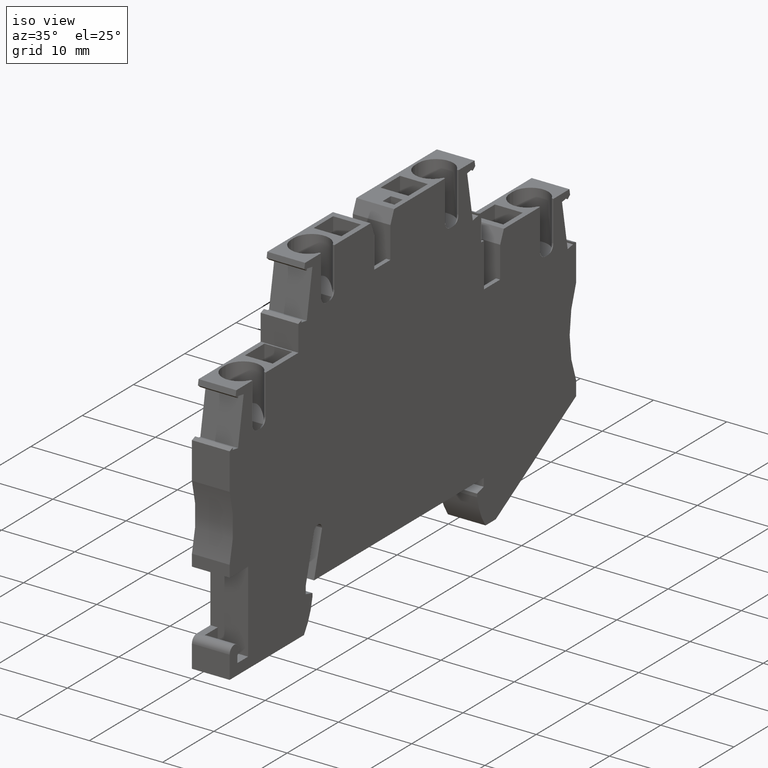
[diagram: clean part render]
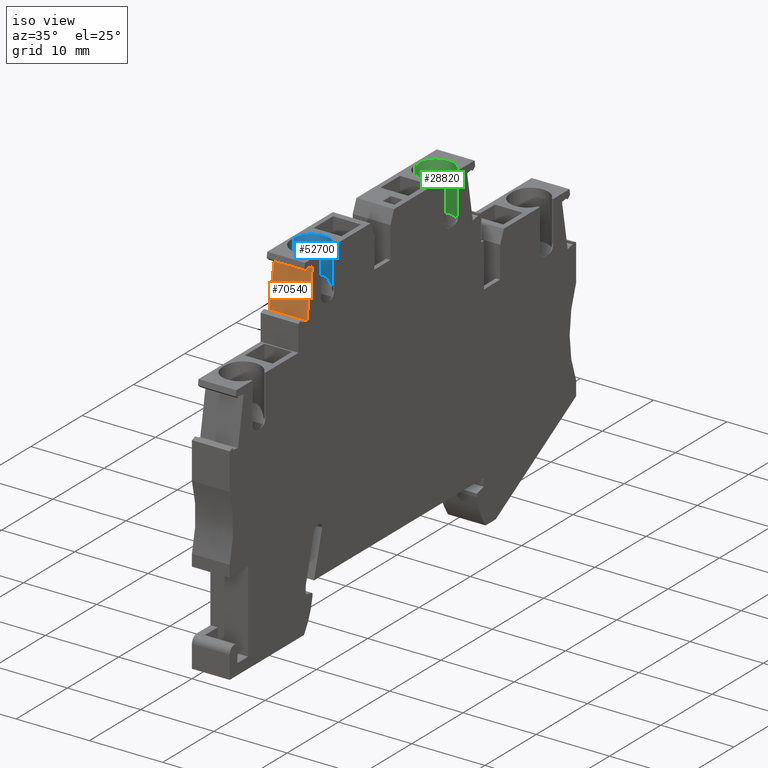
[diagram: same view with three faces highlighted in distinct colors, each labeled with its STEP entity id]
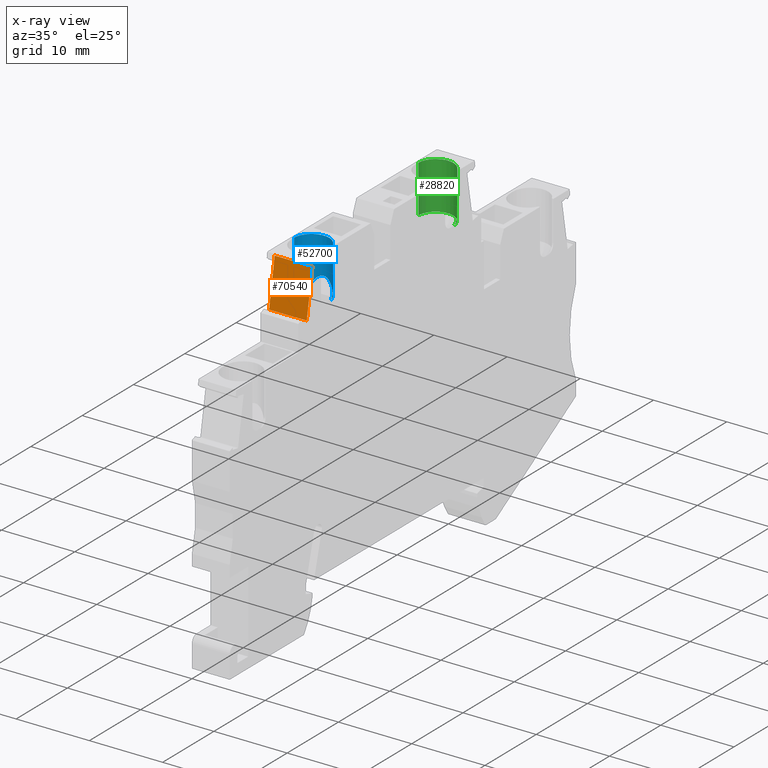
[diagram: x-ray of the same camera — body ghosted, the three highlighted faces saturated]
A machine part, iso view with three faces highlighted in distinct colors.
The next image is the same camera in x-ray (body ghosted, the three faces saturated) — at least one of them is partly hidden behind the body in this view.
Their STEP definitions:

[orange] entity #70540 — the highlighted planar face has unit normal (-0, 0.9848, -0.1736).
#3660=CARTESIAN_POINT('',(151.465628024636,41.3083312568005,48.52));
#3670=VERTEX_POINT('',#3660);
#3700=CARTESIAN_POINT('',(141.505837265967,-15.176449,48.52));
#3710=DIRECTION('',(0.173648177667041,0.984807753012189,0.));
#3720=VECTOR('',#3710,1.);
#3730=LINE('',#3700,#3720);
#3740=CARTESIAN_POINT('',(150.367303300892,35.0794222189993,48.52));
#3750=VERTEX_POINT('',#3740);
#3760=EDGE_CURVE('',#3750,#3670,#3730,.T.);
#70240=CARTESIAN_POINT('',(150.454127389726,35.5718260955042,53.67));
#70250=DIRECTION('',(0.984807753012189,-0.173648177667041,0.));
#70260=DIRECTION('',(-0.173648177667041,-0.984807753012189,0.));
#70270=AXIS2_PLACEMENT_3D('',#70240,#70250,#70260);
#70280=PLANE('',#70270);
#70290=CARTESIAN_POINT('',(141.505837265967,-15.176449,53.67));
#70300=DIRECTION('',(0.173648177667041,0.984807753012189,0.));
#70310=VECTOR('',#70300,1.);
#70320=LINE('',#70290,#70310);
#70330=CARTESIAN_POINT('',(150.367303300892,35.0794222189993,53.67));
#70340=VERTEX_POINT('',#70330);
#70350=CARTESIAN_POINT('',(151.465628024636,41.3083312568005,53.67));
#70360=VERTEX_POINT('',#70350);
#70370=EDGE_CURVE('',#70340,#70360,#70320,.T.);
#70380=ORIENTED_EDGE('',*,*,#70370,.T.);
#70390=CARTESIAN_POINT('',(150.367303300892,35.0794222189993,53.67));
#70400=DIRECTION('',(0.,0.,-1.));
#70410=VECTOR('',#70400,1.);
#70420=LINE('',#70390,#70410);
#70430=EDGE_CURVE('',#70340,#3750,#70420,.T.);
#70440=ORIENTED_EDGE('',*,*,#70430,.F.);
#70450=ORIENTED_EDGE('',*,*,#3760,.F.);
#70460=CARTESIAN_POINT('',(151.465628024636,41.3083312568005,53.67));
#70470=DIRECTION('',(0.,0.,-1.));
#70480=VECTOR('',#70470,1.);
#70490=LINE('',#70460,#70480);
#70500=EDGE_CURVE('',#70360,#3670,#70490,.T.);
#70510=ORIENTED_EDGE('',*,*,#70500,.T.);
#70520=EDGE_LOOP('',(#70510,#70450,#70440,#70380));
#70530=FACE_OUTER_BOUND('',#70520,.T.);
#70540=ADVANCED_FACE('',(#70530),#70280,.F.);

[blue] entity #52700 — the highlighted cylindrical surface (edge-blend (fillet) strip) has radius 2.4 mm, axis along (-0, -0, -1).
#51160=CARTESIAN_POINT('',(154.753036999973,44.501017822169,51.27));
#51170=DIRECTION('',(-1.17239551400417E-13,-1.,0.));
#51180=DIRECTION('',(-1.,1.17239551400417E-13,0.));
#51190=AXIS2_PLACEMENT_3D('',#51160,#51170,#51180);
#51200=CYLINDRICAL_SURFACE('',#51190,2.4);
#51210=CARTESIAN_POINT('',(154.753036999973,35.8467138221698,51.27));
#51220=DIRECTION('',(-8.67361737981714E-16,-1.,-1.38777878079272E-17));
#51230=DIRECTION('',(-1.,8.67361737981714E-16,1.20370621524251E-32));
#51240=AXIS2_PLACEMENT_3D('',#51210,#51220,#51230);
#51250=CIRCLE('',#51240,2.40000000000014);
#51260=CARTESIAN_POINT('',(156.440922309258,35.8467138221698,
52.9761779457901));
#51270=VERTEX_POINT('',#51260);
#51280=CARTESIAN_POINT('',(154.753036999973,35.8467138221694,53.67));
#51290=VERTEX_POINT('',#51280);
#51300=EDGE_CURVE('',#51270,#51290,#51250,.T.);
#51310=ORIENTED_EDGE('',*,*,#51300,.T.);
#51320=CARTESIAN_POINT('',(154.753036999973,32.2270320953817,51.27));
#51330=DIRECTION('',(0.906307787036651,-0.422618261740698,0.));
#51340=DIRECTION('',(-0.422618261740698,-0.906307787036651,
-3.0624889262629E-17));
#51350=AXIS2_PLACEMENT_3D('',#51320,#51330,#51340);
#51360=ELLIPSE('',#51350,5.67888379956604,2.4);
#51370=CARTESIAN_POINT('',(156.440922309259,35.8467138221698,
49.5638220542103));
#51380=VERTEX_POINT('',#51370);
#51390=EDGE_CURVE('',#51380,#51270,#51360,.T.);
#51400=ORIENTED_EDGE('',*,*,#51390,.T.);
#51410=CARTESIAN_POINT('',(154.753036999973,35.8467138221698,51.27));
#51420=DIRECTION('',(-8.67361737981714E-16,-1.,-1.38777878079272E-17));
#51430=DIRECTION('',(-1.,8.67361737981714E-16,1.20370621524251E-32));
#51440=AXIS2_PLACEMENT_3D('',#51410,#51420,#51430);
#51450=CIRCLE('',#51440,2.40000000000014);
#51460=CARTESIAN_POINT('',(154.753036999973,35.8467138221694,48.87));
#51470=VERTEX_POINT('',#51460);
#51480=EDGE_CURVE('',#51470,#51380,#51450,.T.);
#51490=ORIENTED_EDGE('',*,*,#51480,.T.);
#51500=CARTESIAN_POINT('',(154.753036999974,44.501017822169,48.87));
#51510=DIRECTION('',(-1.17239551400417E-13,-1.,-1.38777878145543E-17));
#51520=VECTOR('',#51510,1.);
#51530=LINE('',#51500,#51520);
#51540=CARTESIAN_POINT('',(154.753036999974,42.346713822168,48.87));
#51550=VERTEX_POINT('',#51540);
#51560=EDGE_CURVE('',#51550,#51470,#51530,.T.);
#51570=ORIENTED_EDGE('',*,*,#51560,.T.);
#51580=CARTESIAN_POINT('',(154.753036999973,42.346713822168,51.27));
#51590=DIRECTION('',(1.17239551400417E-13,1.,0.));
#51600=DIRECTION('',(-1.,1.17239551400417E-13,0.));
#51610=AXIS2_PLACEMENT_3D('',#51580,#51590,#51600);
#51620=CIRCLE('',#51610,2.4);
#51630=CARTESIAN_POINT('',(155.753036999973,42.3467138221679,
53.4517424229271));
#51640=VERTEX_POINT('',#51630);
#51650=EDGE_CURVE('',#51640,#51550,#51620,.T.);
#51660=ORIENTED_EDGE('',*,*,#51650,.T.);
#51670=CARTESIAN_POINT('',(155.753036999973,44.501017822169,
53.4517424229274));
#51680=DIRECTION('',(-1.73472347596343E-15,-1.,-2.77555756158543E-17));
#51690=VECTOR('',#51680,1.);
#51700=LINE('',#51670,#51690);
#51710=CARTESIAN_POINT('',(155.753036999973,36.8467138221694,
53.4517424229274));
#51720=VERTEX_POINT('',#51710);
#51730=EDGE_CURVE('',#51640,#51720,#51700,.T.);
#51740=ORIENTED_EDGE('',*,*,#51730,.F.);
#51750=CARTESIAN_POINT('',(154.753036999973,36.8467138221694,53.67));
#51760=DIRECTION('',(0.,0.,1.));
#51770=DIRECTION('',(1.,0.,0.));
#51780=AXIS2_PLACEMENT_3D('',#51750,#51760,#51770);
#51790=CYLINDRICAL_SURFACE('',#51780,1.);
#51800=CARTESIAN_POINT('',(154.753036999973,44.501017822169,51.27));
#51810=DIRECTION('',(-1.73472347596343E-15,-1.,-2.77555756158543E-17));
#51820=DIRECTION('',(-1.,1.73472347596345E-15,-1.15490950136632E-13));
#51830=AXIS2_PLACEMENT_3D('',#51800,#51810,#51820);
#51840=CYLINDRICAL_SURFACE('',#51830,2.4);
#51850=CARTESIAN_POINT('',(154.753036999972,35.8467138221694,53.67));
#51860=CARTESIAN_POINT('',(154.769558433057,35.8467138221694,53.67));
#51870=CARTESIAN_POINT('',(154.786071485554,35.8471235838915,
53.6698291800724));
#51880=CARTESIAN_POINT('',(154.802541315718,35.8479399124568,
53.6694893879163));
#51890=CARTESIAN_POINT('',(154.819010877099,35.8487562276998,
53.6691496013055));
#51900=CARTESIAN_POINT('',(154.835477250943,35.8499810679911,
53.6686400266826));
#51910=CARTESIAN_POINT('',(154.851906302706,35.8516133945858,
53.6679626479529));
#51920=CARTESIAN_POINT('',(154.868335326235,35.8532457183753,
53.6672852703873));
#51930=CARTESIAN_POINT('',(154.884726662018,35.8552855018436,
53.6664401028));
#51940=CARTESIAN_POINT('',(154.901045873578,35.8577277892377,
53.665431771797));
#51950=CARTESIAN_POINT('',(154.917365090347,35.8601700774113,
53.6644234404721));
#51960=CARTESIAN_POINT('',(154.933611828485,35.863014812485,
53.6632519751285));
#51970=CARTESIAN_POINT('',(154.949752555122,35.8662532210423,
53.661924536929));
#51980=CARTESIAN_POINT('',(154.965898677049,35.8694927120884,
53.6605966550124));
#51990=CARTESIAN_POINT('',(154.981914095465,35.873119887631,
53.6591152427836));
#52000=CARTESIAN_POINT('',(154.997842082676,35.8771415084751,
53.657482035845));
#52010=CARTESIAN_POINT('',(155.013771028721,35.8811633714127,
53.6558487305907));
#52020=CARTESIAN_POINT('',(155.029606506842,35.8855794703688,
53.6540637362907));
#52030=CARTESIAN_POINT('',(155.045318738523,35.8903815654145,
53.652135887247));
#52040=CARTESIAN_POINT('',(155.061030944484,35.8951836525994,
53.6502080413591));
#52050=CARTESIAN_POINT('',(155.076619627172,35.9003716591884,
53.6481373803281));
#52060=CARTESIAN_POINT('',(155.092055470494,35.9059341047827,
53.6459348637213));
#52070=CARTESIAN_POINT('',(155.107491313152,35.9114965501379,
53.6437323472091));
#52080=CARTESIAN_POINT('',(155.122774056977,35.9174333383912,
53.6413980240069));
#52090=CARTESIAN_POINT('',(155.137875743694,35.9237299971046,
53.6389447315908));
#52100=CARTESIAN_POINT('',(155.15297745227,35.9300266649319,
53.6364914356236));
#52110=CARTESIAN_POINT('',(155.167897868414,35.9366830928677,
53.6339192256288));
#52120=CARTESIAN_POINT('',(155.182611144699,35.943682231259,
53.631242481022));
#52130=CARTESIAN_POINT('',(155.197323879545,35.9506811120862,
53.6285658349177));
#52140=CARTESIAN_POINT('',(155.211821115007,35.9580169113524,
53.6257867440502));
#52150=CARTESIAN_POINT('',(155.226164377087,35.9657197898257,
53.6229025659865));
#52160=CARTESIAN_POINT('',(155.254839742823,35.981119554274,
53.6171364536219));
#52170=CARTESIAN_POINT('',(155.282788231067,35.9979360939353,
53.6109691613471));
#52180=CARTESIAN_POINT('',(155.30983221372,36.0160640223416,
53.6045190275403));
#52190=CARTESIAN_POINT('',(155.336876031136,36.0341918399873,
53.5980689331436));
#52200=CARTESIAN_POINT('',(155.363010794344,36.0536280747604,
53.5913374690135));
#52210=CARTESIAN_POINT('',(155.388078075263,36.0742354517953,
53.5844595120015));
#52220=CARTESIAN_POINT('',(155.413145553583,36.0948429911095,
53.5775815008269));
#52230=CARTESIAN_POINT('',(155.437141882477,36.1166183553184,
53.5705585460431));
#52240=CARTESIAN_POINT('',(155.459939695761,36.1394030144705,
53.5635319005169));
#52250=CARTESIAN_POINT('',(155.482735309655,36.1621854755031,
53.5565059328769));
#52260=CARTESIAN_POINT('',(155.504511683605,36.1861558156451,
53.5494208324382));
#52270=CARTESIAN_POINT('',(155.525115699281,36.2111868895577,
53.5424204017029));
#52280=CARTESIAN_POINT('',(155.545719539195,36.2362177499433,
53.5354200306846));
#52290=CARTESIAN_POINT('',(155.565147954535,36.2623058809481,
53.528505880493));
#52300=CARTESIAN_POINT('',(155.583269128928,36.2892960147299,
53.5218247294254));
#52310=CARTESIAN_POINT('',(155.601390396556,36.3162862873796,
53.5151435439823));
#52320=CARTESIAN_POINT('',(155.618201810767,36.3441745109321,
53.5086969213532));
#52330=CARTESIAN_POINT('',(155.633601906561,36.3727882528183,
53.5026229966759));
#52340=CARTESIAN_POINT('',(155.641305580916,36.3871018618056,
53.4995846040324));
#52350=CARTESIAN_POINT('',(155.648641162878,36.4015645138013,
53.4966455302633));
#52360=CARTESIAN_POINT('',(155.655644943726,36.4162502350072,
53.4938028014808));
#52370=CARTESIAN_POINT('',(155.6626496328,36.4309378606046,
53.4909597040635));
#52380=CARTESIAN_POINT('',(155.669318148236,36.4458438724245,
53.4882145144065));
#52390=CARTESIAN_POINT('',(155.675631823325,36.4609434346021,
53.485585428713));
#52400=CARTESIAN_POINT('',(155.68194547941,36.4760429513301,
53.482956350933));
#52410=CARTESIAN_POINT('',(155.687904178463,36.4913357927872,
53.4804434488251));
#52420=CARTESIAN_POINT('',(155.693491540701,36.5067943363731,
53.4780636894857));
#52430=CARTESIAN_POINT('',(155.699078894522,36.5222528566738,
53.475683933731));
#52440=CARTESIAN_POINT('',(155.704294803802,36.5378768181813,
53.4734373898212));
#52450=CARTESIAN_POINT('',(155.709125732014,36.5536364664034,
53.4713392143112));
#52460=CARTESIAN_POINT('',(155.713956660589,36.5693961158079,
53.4692410386437));
#52470=CARTESIAN_POINT('',(155.718402514731,36.5852911588895,
53.4672912934101));
#52480=CARTESIAN_POINT('',(155.722453010298,36.6012905165834,
53.4655028123248));
#52490=CARTESIAN_POINT('',(155.726503513212,36.617289903299,
53.4637143279954));
#52500=CARTESIAN_POINT('',(155.730158584859,36.6333932863067,
53.4620871580589));
#52510=CARTESIAN_POINT('',(155.733411426571,36.6495692466103,
53.4606314120988));
#52520=CARTESIAN_POINT('',(155.736664280587,36.6657452680992,
53.4591756606323));
#52530=CARTESIAN_POINT('',(155.739514859195,36.6819935348409,
53.4578913670179));
#52540=CARTESIAN_POINT('',(155.741959862686,36.6982834627348,
53.4567856711629));
#52550=CARTESIAN_POINT('',(155.744403586685,36.714564865957,
53.4556805539288));
#52560=CARTESIAN_POINT('',(155.746446917013,36.7309118065182,
53.4547517010195));
#52570=CARTESIAN_POINT('',(155.74808955923,36.7473639136871,
53.4540032976891));
#52580=CARTESIAN_POINT('',(155.749731611429,36.7638101114546,
53.4532551631763));
#52590=CARTESIAN_POINT('',(155.750969490881,36.7803360340741,
53.4526890684409));
#52600=CARTESIAN_POINT('',(155.751795851015,36.7969066192314,
53.4523108755322));
#52610=CARTESIAN_POINT('',(155.752622208219,36.8134771456504,
53.451932683964));
#52620=CARTESIAN_POINT('',(155.753036999973,36.8300919034458,
53.4517424229275));
#52630=CARTESIAN_POINT('',(155.753036999973,36.8467138221693,
53.4517424229275));
#52640=B_SPLINE_CURVE_WITH_KNOTS('',3,(#51850,#51860,#51870,#51880,
#51890,#51900,#51910,#51920,#51930,#51940,#51950,#51960,#51970,#51980,
#51990,#52000,#52010,#52020,#52030,#52040,#52050,#52060,#52070,#52080,
#52090,#52100,#52110,#52120,#52130,#52140,#52150,#52160,#52170,#52180,
#52190,#52200,#52210,#52220,#52230,#52240,#52250,#52260,#52270,#52280,
#52290,#52300,#52310,#52320,#52330,#52340,#52350,#52360,#52370,#52380,
#52390,#52400,#52410,#52420,#52430,#52440,#52450,#52460,#52470,#52480,
#52490,#52500,#52510,#52520,#52530,#52540,#52550,#52560,#52570,#52580,
#52590,#52600,#52610,#52620,#52630),.UNSPECIFIED.,.F.,.F.,(4,3,3,3,3,3,3
,3,3,3,3,3,3,3,3,3,3,3,3,3,3,3,3,3,3,3,4),(0.,0.0495280659790585,
0.0990589953840796,0.148648026173258,0.198225240294169,0.247737429567471
,0.297320385403717,0.346971204512894,0.396625897110159,0.446216142963204
,0.495739848103463,0.595141697680515,0.694722830418228,0.79400166846512,
0.893268534081524,0.992840747784811,1.09224322139272,1.14177234334139,
1.19142111106462,1.2412045379426,1.29104817767181,1.3408794960209,
1.39063123962349,1.4402450420052,1.48979099530396,1.53950711074838,
1.58933925073474),.UNSPECIFIED.);
#52650=SURFACE_CURVE('',#52640,(#51790,#51840),.CURVE_3D.);
#52660=EDGE_CURVE('',#51290,#51720,#52650,.T.);
#52670=ORIENTED_EDGE('',*,*,#52660,.T.);
#52680=EDGE_LOOP('',(#52670,#51740,#51660,#51570,#51490,#51400,#51310));
#52690=FACE_OUTER_BOUND('',#52680,.T.);
#52700=ADVANCED_FACE('',(#52690),#51200,.F.);

[green] entity #28820 — the highlighted cylindrical surface (edge-blend (fillet) strip) has radius 2.4 mm, axis along (0, 0, 1).
#27170=CARTESIAN_POINT('',(178.953036999988,42.3467138221667,48.87));
#27180=VERTEX_POINT('',#27170);
#27230=CARTESIAN_POINT('',(178.953036999988,35.5510178221693,48.87));
#27240=DIRECTION('',(1.59094652935877E-30,1.,1.38777878075117E-17));
#27250=VECTOR('',#27240,1.);
#27260=LINE('',#27230,#27250);
#27270=CARTESIAN_POINT('',(178.953036999987,35.8467138221693,48.87));
#27280=VERTEX_POINT('',#27270);
#27290=EDGE_CURVE('',#27280,#27180,#27260,.T.);
#27550=CARTESIAN_POINT('',(178.953036999988,35.5510178221693,51.27));
#27560=DIRECTION('',(0.,1.,0.));
#27570=DIRECTION('',(1.,0.,0.));
#27580=AXIS2_PLACEMENT_3D('',#27550,#27560,#27570);
#27590=CYLINDRICAL_SURFACE('',#27580,2.4);
#27600=CARTESIAN_POINT('',(178.953036999988,35.8467138221691,51.27));
#27610=DIRECTION('',(5.49976730823754E-14,1.,1.38777878011634E-17));
#27620=DIRECTION('',(1.,-5.49976730823754E-14,-7.6324603659496E-31));
#27630=AXIS2_PLACEMENT_3D('',#27600,#27610,#27620);
#27640=CIRCLE('',#27630,2.40000000000035);
#27650=CARTESIAN_POINT('',(178.953036999988,35.8467138221694,53.67));
#27660=VERTEX_POINT('',#27650);
#27670=EDGE_CURVE('',#27660,#27280,#27640,.T.);
#27680=ORIENTED_EDGE('',*,*,#27670,.F.);
#27690=ORIENTED_EDGE('',*,*,#27290,.F.);
#27700=CARTESIAN_POINT('',(178.953036999988,42.3467138221667,51.27));
#27710=DIRECTION('',(0.,1.,0.));
#27720=DIRECTION('',(1.,0.,0.));
#27730=AXIS2_PLACEMENT_3D('',#27700,#27710,#27720);
#27740=CIRCLE('',#27730,2.4);
#27750=CARTESIAN_POINT('',(179.953036999989,42.3467138221667,
53.4517424229266));
#27760=VERTEX_POINT('',#27750);
#27770=EDGE_CURVE('',#27760,#27180,#27740,.T.);
#27780=ORIENTED_EDGE('',*,*,#27770,.T.);
#27790=CARTESIAN_POINT('',(179.953036999988,35.5510178221679,
53.4517424229266));
#27800=DIRECTION('',(1.09995346164751E-13,1.,2.77555756023267E-17));
#27810=VECTOR('',#27800,1.);
#27820=LINE('',#27790,#27810);
#27830=CARTESIAN_POINT('',(179.953036999988,36.846713822168,
53.4517424229266));
#27840=VERTEX_POINT('',#27830);
#27850=EDGE_CURVE('',#27840,#27760,#27820,.T.);
#27860=ORIENTED_EDGE('',*,*,#27850,.T.);
#27870=CARTESIAN_POINT('',(178.953036999989,36.8467138221694,53.67));
#27880=DIRECTION('',(0.,0.,1.));
#27890=DIRECTION('',(1.,0.,0.));
#27900=AXIS2_PLACEMENT_3D('',#27870,#27880,#27890);
#27910=CYLINDRICAL_SURFACE('',#27900,1.);
#27920=CARTESIAN_POINT('',(178.953036999987,35.551017822168,
51.2699999999999));
#27930=DIRECTION('',(1.09995346164751E-13,1.,2.77555756023268E-17));
#27940=DIRECTION('',(1.,-1.09995346164751E-13,-1.15379927834169E-13));
#27950=AXIS2_PLACEMENT_3D('',#27920,#27930,#27940);
#27960=CYLINDRICAL_SURFACE('',#27950,2.4);
#27970=CARTESIAN_POINT('',(179.953036999989,36.8467138221695,
53.4517424229264));
#27980=CARTESIAN_POINT('',(179.953036999989,36.8300919141288,
53.4517424229264));
#27990=CARTESIAN_POINT('',(179.952622208793,36.8134771845221,
53.4519326837062));
#28000=CARTESIAN_POINT('',(179.951795855174,36.7969067023037,
53.4523108736351));
#28010=CARTESIAN_POINT('',(179.950969498624,36.7803361612945,
53.4526890649058));
#28020=CARTESIAN_POINT('',(179.949731625803,36.7638102988098,
53.4532551566099));
#28030=CARTESIAN_POINT('',(179.948089585254,36.7473641741737,
53.4540032858385));
#28040=CARTESIAN_POINT('',(179.94644694959,36.7309120890692,
53.454751686207));
#28050=CARTESIAN_POINT('',(179.944403661138,36.7145654053686,
53.4556805201872));
#28060=CARTESIAN_POINT('',(179.941959920878,36.6982838503283,
53.4567856448535));
#28070=CARTESIAN_POINT('',(179.939514913162,36.6819938507933,
53.4578913426973));
#28080=CARTESIAN_POINT('',(179.936664327575,36.6657455181556,
53.4591756395407));
#28090=CARTESIAN_POINT('',(179.933411465386,36.6495694395511,
53.4606313947341));
#28100=CARTESIAN_POINT('',(179.930158615495,36.6333934221068,
53.4620871444234));
#28110=CARTESIAN_POINT('',(179.926503534495,36.6172899907683,
53.4637143185763));
#28120=CARTESIAN_POINT('',(179.922453022971,36.6012905665764,
53.4655028067353));
#28130=CARTESIAN_POINT('',(179.918402518787,36.5852911713776,
53.4672912916533));
#28140=CARTESIAN_POINT('',(179.91395665679,36.5693961016714,
53.4692410403225));
#28150=CARTESIAN_POINT('',(179.909125723215,36.5536364376455,
53.4713392181389));
#28160=CARTESIAN_POINT('',(179.904294789992,36.5378767747679,
53.4734373958023));
#28170=CARTESIAN_POINT('',(179.899078878569,36.5222528106186,
53.475683940571));
#28180=CARTESIAN_POINT('',(179.893491527554,36.5067942999543,
53.4780636950912));
#28190=CARTESIAN_POINT('',(179.887904168111,36.491335765974,
53.4804434532007));
#28200=CARTESIAN_POINT('',(179.881945476813,36.4760429463992,
53.4829563519801));
#28210=CARTESIAN_POINT('',(179.875631835334,36.460943463285,
53.4855854237178));
#28220=CARTESIAN_POINT('',(179.86931817484,36.4458439346924,
53.488214503374));
#28230=CARTESIAN_POINT('',(179.862649680861,36.4309379681845,
53.4909596842762));
#28240=CARTESIAN_POINT('',(179.855645021619,36.4162503983006,
53.493802769871));
#28250=CARTESIAN_POINT('',(179.848641293444,36.4015647807033,
53.4966454775599));
#28260=CARTESIAN_POINT('',(179.841305671141,36.3871020348677,
53.4995845681519));
#28270=CARTESIAN_POINT('',(179.833601981909,36.372788392786,
53.5026229669636));
#28280=CARTESIAN_POINT('',(179.818201849128,36.3441745712798,
53.508696906829));
#28290=CARTESIAN_POINT('',(179.801390400826,36.3162862919308,
53.5151435425691));
#28300=CARTESIAN_POINT('',(179.783269111894,36.2892959893349,
53.5218247357108));
#28310=CARTESIAN_POINT('',(179.76514791611,36.2623058254769,
53.5285058945093));
#28320=CARTESIAN_POINT('',(179.745719492361,36.2362176903361,
53.5354200469407));
#28330=CARTESIAN_POINT('',(179.725115665781,36.2111868488407,
53.5424204130894));
#28340=CARTESIAN_POINT('',(179.704511662544,36.1861557927297,
53.5494208392596));
#28350=CARTESIAN_POINT('',(179.682735326707,36.1621854973924,
53.5565059268038));
#28360=CARTESIAN_POINT('',(179.659939771277,36.1394030899274,
53.5635318772457));
#28370=CARTESIAN_POINT('',(179.637141905903,36.1166183738499,
53.5705585396491));
#28380=CARTESIAN_POINT('',(179.613145533731,36.0948429720982,
53.5775815068511));
#28390=CARTESIAN_POINT('',(179.588078026038,36.0742354113142,
53.5844595255118));
#28400=CARTESIAN_POINT('',(179.563010715693,36.0536280127676,
53.591337490024));
#28410=CARTESIAN_POINT('',(179.536875937045,36.0341917725119,
53.5980689567281));
#28420=CARTESIAN_POINT('',(179.50983212062,36.0160639599244,
53.6045190497485));
#28430=CARTESIAN_POINT('',(179.482788138866,35.9979360365152,
53.6109691822006));
#28440=CARTESIAN_POINT('',(179.454839667919,35.9811195122703,
53.6171364692213));
#28450=CARTESIAN_POINT('',(179.42616433493,35.9657197671772,
53.6229025744662));
#28460=CARTESIAN_POINT('',(179.411821089035,35.9580168982803,
53.625786749008));
#28470=CARTESIAN_POINT('',(179.39732388474,35.9506811140955,
53.6285658341214));
#28480=CARTESIAN_POINT('',(179.382611121986,35.9436822204461,
53.6312424851567));
#28490=CARTESIAN_POINT('',(179.367897832822,35.9366830763827,
53.6339192319602));
#28500=CARTESIAN_POINT('',(179.352977406941,35.9300266450327,
53.6364914433276));
#28510=CARTESIAN_POINT('',(179.337875692027,35.923729975555,
53.6389447399864));
#28520=CARTESIAN_POINT('',(179.32277399896,35.9174333151871,
53.6413980330958));
#28530=CARTESIAN_POINT('',(179.307491252181,35.9114965270389,
53.643732356312));
#28540=CARTESIAN_POINT('',(179.292055409997,35.9059340829765,
53.6459348723553));
#28550=CARTESIAN_POINT('',(179.276619567145,35.9003716386731,
53.6481373884941));
#28560=CARTESIAN_POINT('',(179.261030888351,35.8951836345578,
53.6502080485764));
#28570=CARTESIAN_POINT('',(179.245318689508,35.890381550429,
53.6521358932627));
#28580=CARTESIAN_POINT('',(179.229606464937,35.8855794584372,
53.6540637411058));
#28590=CARTESIAN_POINT('',(179.213770997149,35.8811633631142,
53.6558487339539));
#28600=CARTESIAN_POINT('',(179.19784206421,35.8771415038084,
53.6574820377399));
#28610=CARTESIAN_POINT('',(179.181914100144,35.8731198891312,
53.6591152421806));
#28620=CARTESIAN_POINT('',(179.165898665017,35.8694927093782,
53.6605966561192));
#28630=CARTESIAN_POINT('',(179.14975253804,35.8662532176119,
53.6619245383348));
#28640=CARTESIAN_POINT('',(179.133611805808,35.8630148082248,
53.6632519768784));
#28650=CARTESIAN_POINT('',(179.117365065037,35.8601700732009,
53.664423442207));
#28660=CARTESIAN_POINT('',(179.101045848694,35.8577277855111,
53.6654317733353));
#28670=CARTESIAN_POINT('',(179.084726637552,35.8552854985997,
53.6664401041422));
#28680=CARTESIAN_POINT('',(179.068335305244,35.8532457160444,
53.6672852713535));
#28690=CARTESIAN_POINT('',(179.051906288106,35.8516133931335,
53.6679626485554));
#28700=CARTESIAN_POINT('',(179.035477242643,35.8499810674085,
53.668640026925));
#28710=CARTESIAN_POINT('',(179.019010878364,35.8487562279712,
53.6691496011925));
#28720=CARTESIAN_POINT('',(179.002541328413,35.8479399130852,
53.6694893876546));
#28730=CARTESIAN_POINT('',(178.986071491559,35.8471235839788,
53.6698291800358));
#28740=CARTESIAN_POINT('',(178.969558434747,35.8467138221694,
53.6699999999999));
#28750=CARTESIAN_POINT('',(178.953036999988,35.8467138221694,
53.6699999999999));
#28760=B_SPLINE_CURVE_WITH_KNOTS('',3,(#27970,#27980,#27990,#28000,
#28010,#28020,#28030,#28040,#28050,#28060,#28070,#28080,#28090,#28100,
#28110,#28120,#28130,#28140,#28150,#28160,#28170,#28180,#28190,#28200,
#28210,#28220,#28230,#28240,#28250,#28260,#28270,#28280,#28290,#28300,
#28310,#28320,#28330,#28340,#28350,#28360,#28370,#28380,#28390,#28400,
#28410,#28420,#28430,#28440,#28450,#28460,#28470,#28480,#28490,#28500,
#28510,#28520,#28530,#28540,#28550,#28560,#28570,#28580,#28590,#28600,
#28610,#28620,#28630,#28640,#28650,#28660,#28670,#28680,#28690,#28700,
#28710,#28720,#28730,#28740,#28750),.UNSPECIFIED.,.F.,.F.,(4,3,3,3,3,3,3
,3,3,3,3,3,3,3,3,3,3,3,3,3,3,3,3,3,3,3,4),(0.,0.0498320567893389,
0.099547993381261,0.149093815912762,0.198707813543907,0.248459702841916,
0.298291103384549,0.348134751920798,0.397918108182425,0.447566723740165,
0.497095867637034,0.596498534177317,0.696070770605864,0.795337473019817,
0.894616485478499,0.994197667334127,1.09359945124681,1.14312313328034,
1.19271341024719,1.24236811112078,1.29201891695378,1.34160184032481,
1.39111402793613,1.44069124978639,1.49028027005214,1.53981117205979,
1.58933925073595),.UNSPECIFIED.);
#28770=SURFACE_CURVE('',#28760,(#27910,#27960),.CURVE_3D.);
#28780=EDGE_CURVE('',#27840,#27660,#28770,.T.);
#28790=ORIENTED_EDGE('',*,*,#28780,.F.);
#28800=EDGE_LOOP('',(#28790,#27860,#27780,#27690,#27680));
#28810=FACE_OUTER_BOUND('',#28800,.T.);
#28820=ADVANCED_FACE('',(#28810),#27590,.F.);